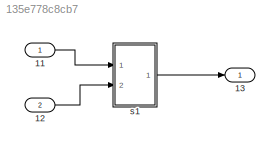
MODEL slx_135e778c8cb7
KIND model
CONFIG AbsTol = auto
CONFIG EnableMultiTasking = off
CONFIG FixedStep = auto
CONFIG MaxStep = auto
CONFIG MinStep = auto
CONFIG RelTol = 1e-3
CONFIG SampleTimeConstraint = Unconstrained
CONFIG Solver = VariableStepAuto
CONFIG SolverName = VariableStepAuto
CONFIG StartTime = 0.0
CONFIG StopTime = 10.0
BLOCK [Inport] 11
  IconDisplay = Port number
BLOCK [Inport] 12
  IconDisplay = Port number
  Port = 2
BLOCK [Outport] 13
  IconDisplay = Port number
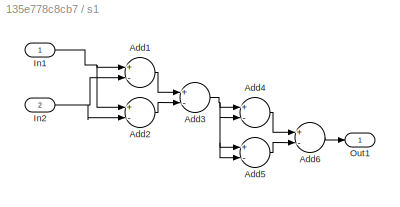
BLOCK [SubSystem] s1 
  Ports = [2, 1]
  RequestExecContextInheritance = off
  Variant = off
BLOCK [Sum] s1 /Add1
  InputSameDT = off
  Inputs = +-
  OutDataTypeStr = Inherit: Inherit via internal rule
  Ports = [2, 1]
  SaturateOnIntegerOverflow = off
BLOCK [Sum] s1 /Add2
  InputSameDT = off
  Inputs = +-
  OutDataTypeStr = Inherit: Inherit via internal rule
  Ports = [2, 1]
  SaturateOnIntegerOverflow = off
BLOCK [Sum] s1 /Add3
  InputSameDT = off
  Inputs = +-
  OutDataTypeStr = Inherit: Inherit via internal rule
  Ports = [2, 1]
  SaturateOnIntegerOverflow = off
BLOCK [Sum] s1 /Add4
  InputSameDT = off
  Inputs = +-
  OutDataTypeStr = Inherit: Inherit via internal rule
  Ports = [2, 1]
  SaturateOnIntegerOverflow = off
BLOCK [Sum] s1 /Add5
  InputSameDT = off
  Inputs = +-
  OutDataTypeStr = Inherit: Inherit via internal rule
  Ports = [2, 1]
  SaturateOnIntegerOverflow = off
BLOCK [Sum] s1 /Add6
  InputSameDT = off
  Inputs = +-
  OutDataTypeStr = Inherit: Inherit via internal rule
  Ports = [2, 1]
  SaturateOnIntegerOverflow = off
BLOCK [Inport] s1 /In1
  IconDisplay = Port number
BLOCK [Inport] s1 /In2
  IconDisplay = Port number
  Port = 2
BLOCK [Outport] s1 /Out1
  IconDisplay = Port number
LINE 11:1 -> s1 :1
LINE 12:1 -> s1 :2
LINE s1 /Add1:1 -> s1 /Add3:1
LINE s1 /Add2:1 -> s1 /Add3:2
NET s1 /Add3:1 -> s1 /Add4:1, s1 /Add4:2, s1 /Add5:1, s1 /Add5:2
LINE s1 /Add4:1 -> s1 /Add6:1
LINE s1 /Add5:1 -> s1 /Add6:2
LINE s1 /Add6:1 -> s1 /Out1:1
NET s1 /In1:1 -> s1 /Add1:1, s1 /Add2:1
NET s1 /In2:1 -> s1 /Add1:2, s1 /Add2:2
LINE s1 :1 -> 13:1
note: NET lines group one-source signal fan-out (src -> all destinations, sorted); 1:1 wires keep LINE
